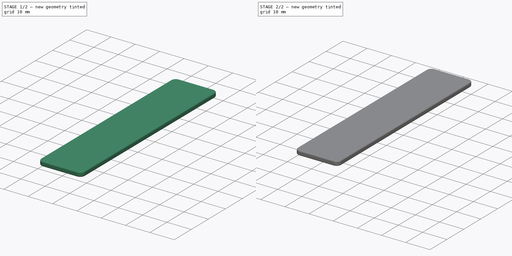
[diagram: build sequence overview — one tinted view per stage of 2, left to right]
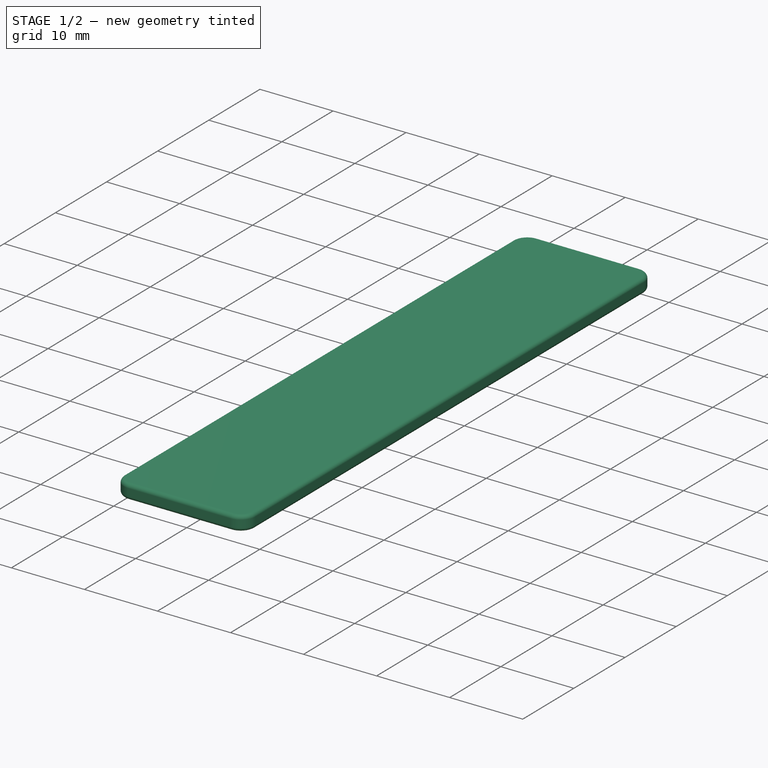
[diagram: stage 1 of 2 — iso view after this stage's code; geometry added in this stage tinted green]
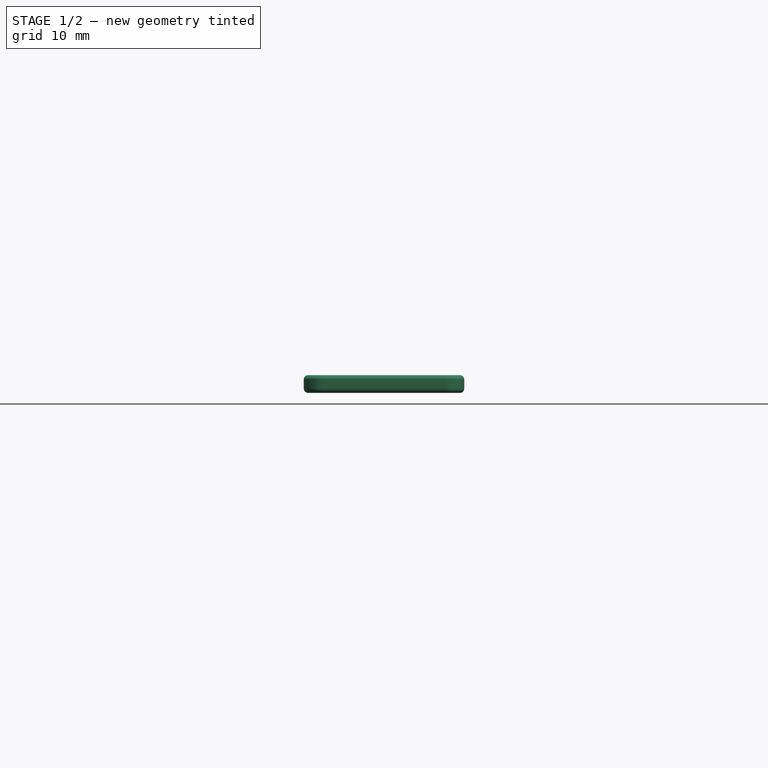
[diagram: stage 1 of 2 — front view after this stage's code; geometry added in this stage tinted green]
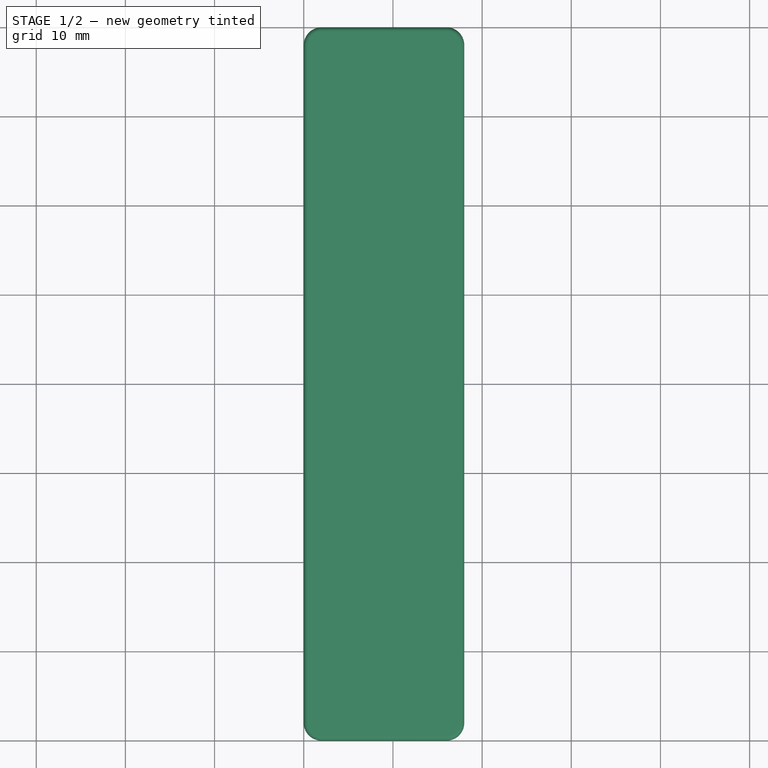
[diagram: stage 1 of 2 — top view after this stage's code; geometry added in this stage tinted green]
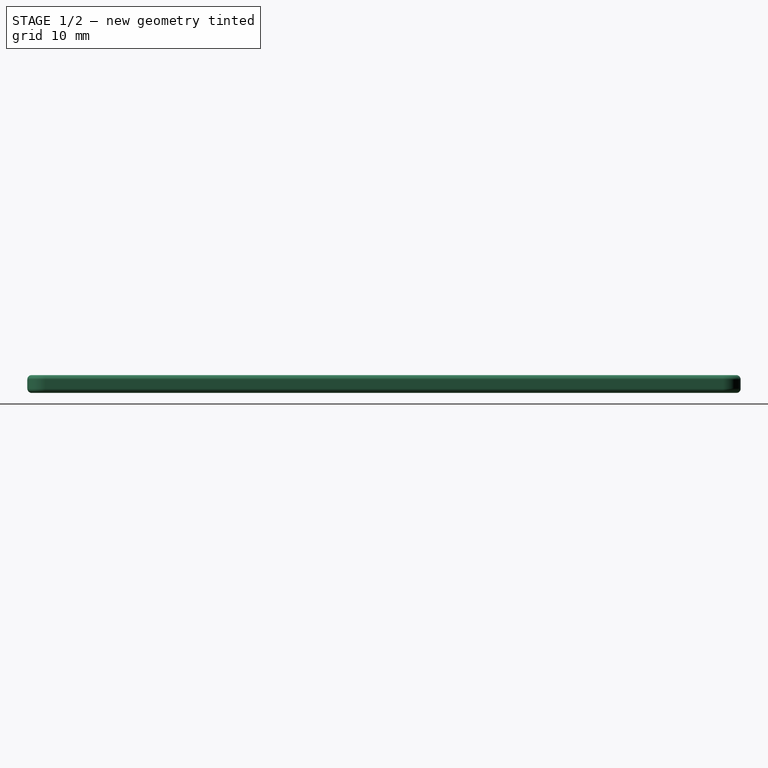
[diagram: stage 1 of 2 — right view after this stage's code; geometry added in this stage tinted green]
FCSTD DOCUMENT  (FreeCAD 0.20R29603 (Git))
Label: keymodel_topC
License: All rights reserved
LicenseURL: http://en.wikipedia.org/wiki/All_rights_reserved
objects: Sketcher::SketchObject×3, PartDesign::Pad×2, PartDesign::Fillet×1, PartDesign::Body×1
note: 10 computed .brp shape members not serialized (recipe doc carries the construction recipe); baked Part::Feature solids carry a one-line shape summary decoded from their .brp

FEATURE [Sketcher::SketchObject] Sketch
  FullyConstrained = true
  MapMode = 5
  Support = -> [XY_Plane]
  sketch-geometry (10):
    g0: ArcOfCircle CenterX=2 CenterY=2 CenterZ=0 NormalX=0 NormalY=0 NormalZ=1 AngleXU=0 Radius=2 StartAngle=3.14159 EndAngle=4.71239
    g1: LineSegment StartX=0 StartY=2 StartZ=0 EndX=0 EndY=78 EndZ=0
    g2: ArcOfCircle CenterX=2 CenterY=78 CenterZ=0 NormalX=0 NormalY=0 NormalZ=1 AngleXU=0 Radius=2 StartAngle=1.5708 EndAngle=3.14159
    g3: LineSegment StartX=2 StartY=80 StartZ=0 EndX=16 EndY=80 EndZ=0
    g4: ArcOfCircle CenterX=16 CenterY=78 CenterZ=0 NormalX=0 NormalY=0 NormalZ=1 AngleXU=0 Radius=2 StartAngle=3.7e-15 EndAngle=1.5708
    g5: LineSegment StartX=18 StartY=78 StartZ=0 EndX=18 EndY=2 EndZ=0
    g6: ArcOfCircle CenterX=16 CenterY=2 CenterZ=0 NormalX=0 NormalY=0 NormalZ=1 AngleXU=0 Radius=2 StartAngle=4.71239 EndAngle=6.28319
    g7: LineSegment StartX=16 StartY=0 StartZ=0 EndX=2 EndY=0 EndZ=0
    g8: GeomPoint X=0 Y=0 Z=0
    g9: GeomPoint X=18 Y=80 Z=0
  constraints (23):
    c: Tangent(g0,g1) = 1.5708
    c: Tangent(g1,g2) = 1.5708
    c: Tangent(g2,g3) = 1.5708
    c: Tangent(g3,g4) = 1.5708
    c: Tangent(g4,g5) = 1.5708
    c: Tangent(g5,g6) = 1.5708
    c: Tangent(g6,g7) = 1.5708
    c: Tangent(g7,g0) = 1.5708
    c: Horizontal(g3)
    c: Horizontal(g7)
    c: Vertical(g1)
    c: Vertical(g5)
    c: Equal(g0,g2)
    c: Equal(g2,g4)
    c: Equal(g4,g6)
    c: PointOnObject(g8,g1)
    c: PointOnObject(g8,g7)
    c: PointOnObject(g9,g3)
    c: PointOnObject(g9,g5)
    c: Coincident(g8,g-1)
    c: Diameter(g0) = 4  'FilletDiameter'
    c: DistanceX(g0,g5) = 18
    c: DistanceY(g6,g3) = 80
FEATURE [PartDesign::Pad] Pad
  Direction = (0,0,1)
  Length = 2
  Length2 = 10
  Profile = -> Sketch
  ReferenceAxis = -> Sketch [N_Axis]
  Type = 0
FEATURE [PartDesign::Fillet] Fillet
  Base = -> Pad [Face4]
  BaseFeature = -> Pad
  Radius = 0.5
  SupportTransform = false
  UseAllEdges = false
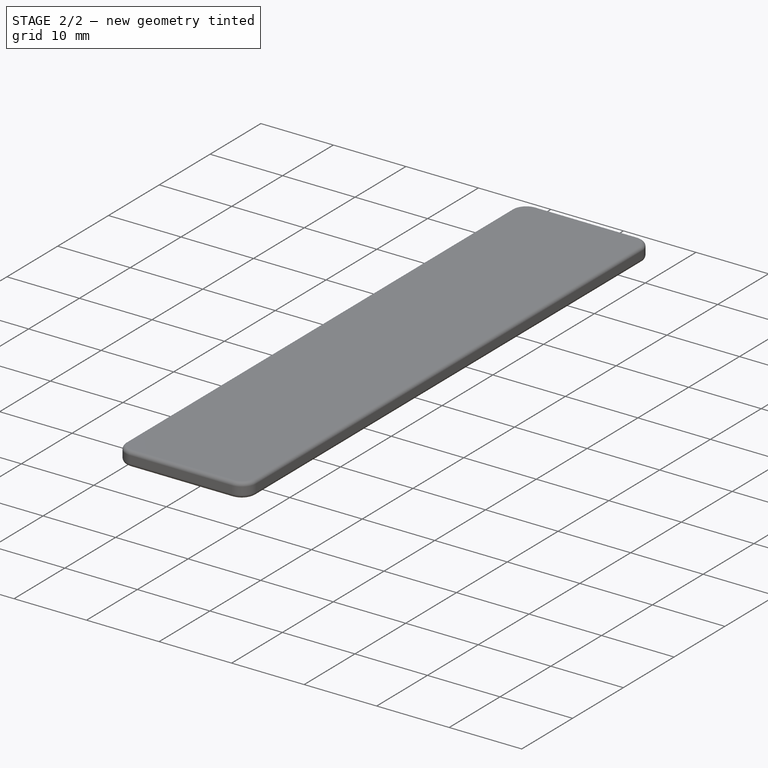
[diagram: stage 2 of 2 — iso view after this stage's code; geometry added in this stage tinted green]
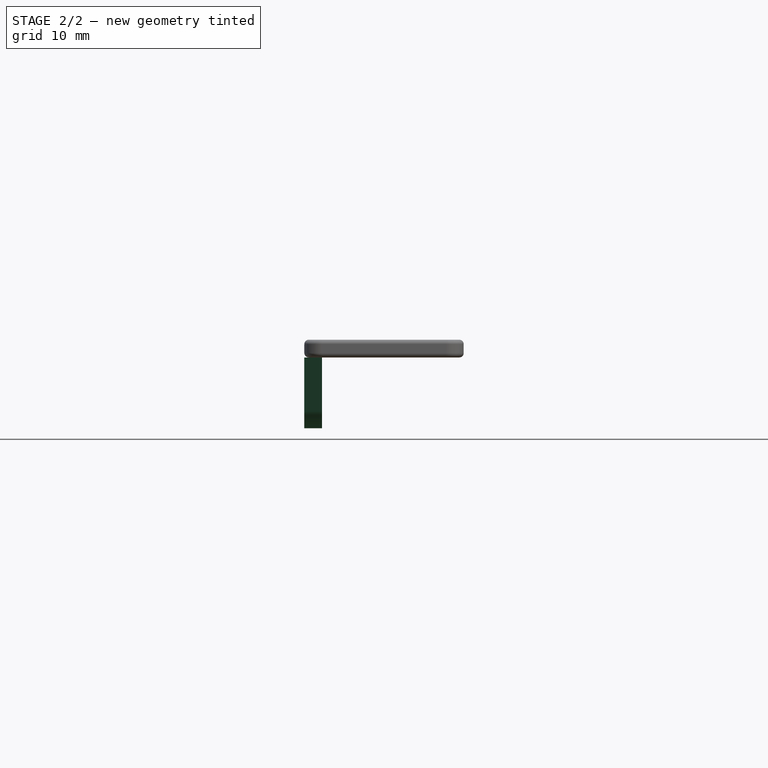
[diagram: stage 2 of 2 — front view after this stage's code; geometry added in this stage tinted green]
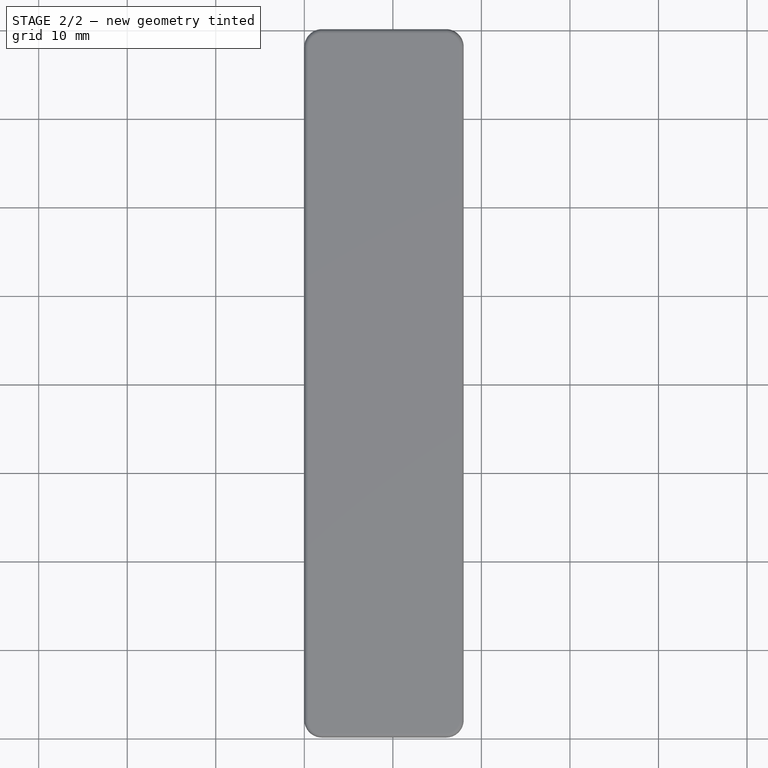
[diagram: stage 2 of 2 — top view after this stage's code; geometry added in this stage tinted green]
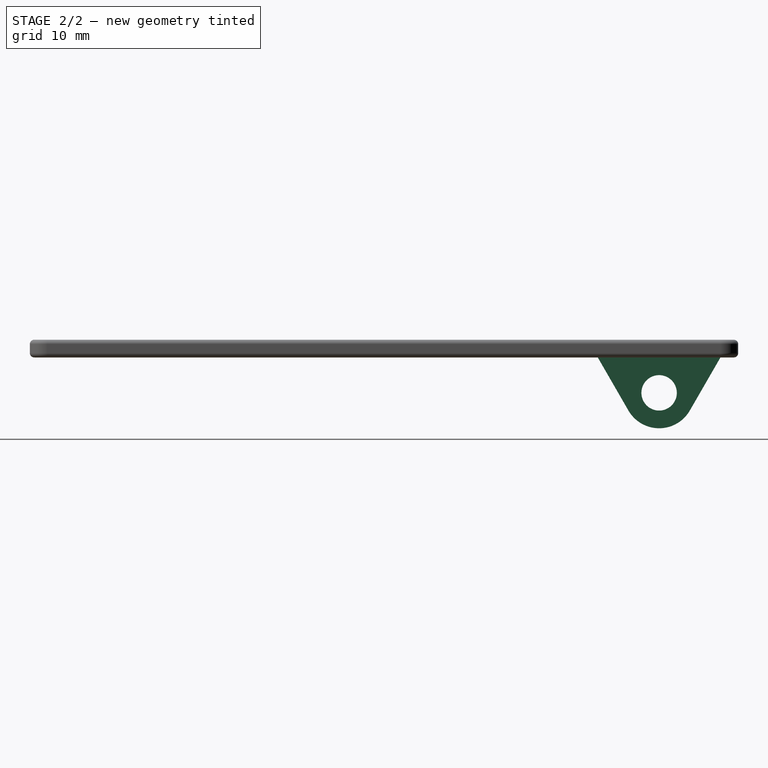
[diagram: stage 2 of 2 — right view after this stage's code; geometry added in this stage tinted green]
FEATURE [Sketcher::SketchObject] Sketch001
  FullyConstrained = false
  MapMode = 5
  Placement = pos=(0,0,0) rot=(0.57735,0.57735,0.57735;2.0944rad)
  Support = -> [YZ_Plane]
  sketch-geometry (6):
    g0: LineSegment StartX=78 StartY=0 StartZ=0 EndX=64.1436 EndY=0 EndZ=0
    g1: LineSegment StartX=64.1436 StartY=0 StartZ=0 EndX=67.6077 EndY=-6 EndZ=0
    g2: LineSegment StartX=74.5359 StartY=-6 StartZ=0 EndX=78 EndY=0 EndZ=0
    g3: Circle CenterX=71.0718 CenterY=-3.9024 CenterZ=0 NormalX=0 NormalY=0 NormalZ=1 AngleXU=0 Radius=7.95165
    g4: Circle CenterX=71.0718 CenterY=-4 CenterZ=0 NormalX=0 NormalY=0 NormalZ=1 AngleXU=0 Radius=2
    g5: ArcOfCircle CenterX=71.0718 CenterY=-4 CenterZ=0 NormalX=0 NormalY=0 NormalZ=1 AngleXU=0 Radius=4 StartAngle=3.66519 EndAngle=5.75959
  constraints (16):
    c: Coincident(g0,g1)
    c: Coincident(g2,g0)
    c: PointOnObject(g0,g3)
    c: PointOnObject(g2,g3)
    c: Tangent(g0,g-1)
    c: Coincident(g5,g4)
    c: Tangent(g5,g2) = -1.5708
    c: Tangent(g5,g1) = -1.5708
    c: Distance(g4,g2) = 4
    c: Diameter(g4) = 4
    c: Distance(g4,g0) = 4
    c: DistanceX(g-1,g0) = 78
    c: Equal(g2,g1)
    c: Coincident(g1,g5)
    c: Coincident(g2,g5)
    c: Angle(g1,g0) = 1.0472
FEATURE [PartDesign::Pad] Pad001
  BaseFeature = -> Fillet
  Direction = (1,-2e-16,3e-16)
  Length = 2
  Length2 = 10
  Profile = -> Sketch001
  ReferenceAxis = -> Sketch001 [N_Axis]
  Type = 0
FEATURE [Sketcher::SketchObject] Sketch002
  FullyConstrained = false
  MapMode = 5
  Placement = pos=(0,0,0) rot=(1,0,0;3.14159rad)
  Support = -> [Pad001]
  sketch-geometry (8):
    g0: LineSegment StartX=15.1896 StartY=-80 StartZ=0 EndX=17.1896 EndY=-80 EndZ=0
    g1: LineSegment StartX=17.1896 StartY=-80 StartZ=0 EndX=17.1896 EndY=-60 EndZ=0
    g2: LineSegment StartX=17.1896 StartY=-60 StartZ=0 EndX=15.1896 EndY=-60 EndZ=0
    g3: LineSegment StartX=15.1896 StartY=-60 StartZ=0 EndX=15.1896 EndY=-80 EndZ=0
    g4: LineSegment StartX=10.1166 StartY=-60 StartZ=0 EndX=10.1166 EndY=-80 EndZ=0
    g5: LineSegment StartX=10.1166 StartY=-60 StartZ=0 EndX=8.1166 EndY=-60 EndZ=0
    g6: LineSegment StartX=8.1166 StartY=-60 StartZ=0 EndX=8.1166 EndY=-80 EndZ=0
    g7: LineSegment StartX=10.1166 StartY=-80 StartZ=0 EndX=8.1166 EndY=-80 EndZ=0
  constraints (22):
    c: Coincident(g0,g1)
    c: Coincident(g1,g2)
    c: Coincident(g2,g3)
    c: Coincident(g3,g0)
    c: Horizontal(g0)
    c: Horizontal(g2)
    c: Vertical(g1)
    c: Vertical(g3)
    c: Distance(g1,g-1) = 60
    c: DistanceY(g-1,g0) = -80
    c: Distance(g0) = 2
    c: Vertical(g4)
    c: Equal(g3,g4)
    c: Coincident(g5,g4)
    c: Horizontal(g5)
    c: Equal(g5,g2)
    c: PointOnObject(g4,g2)
    c: Coincident(g6,g5)
    c: Vertical(g6)
    c: Coincident(g7,g4)
    c: Coincident(g7,g6)
    c: Horizontal(g7)
FEATURE [PartDesign::Body] Body
  Group = -> [Sketch,Pad,Fillet,Sketch001,Pad001,Sketch002]
  Origin = -> Origin
  Tip = -> Pad001
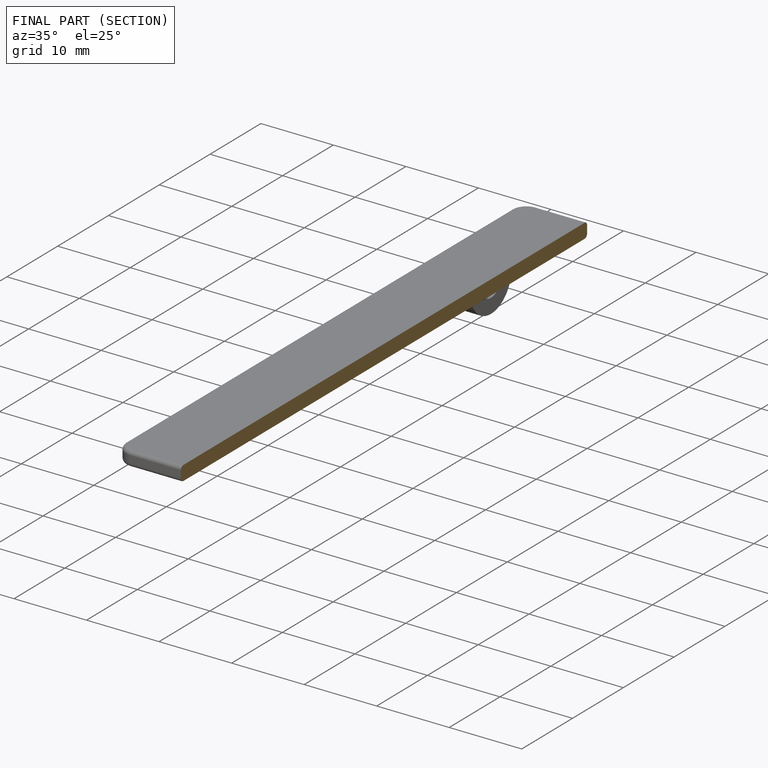
[diagram: finished part — half-section view (interior)]
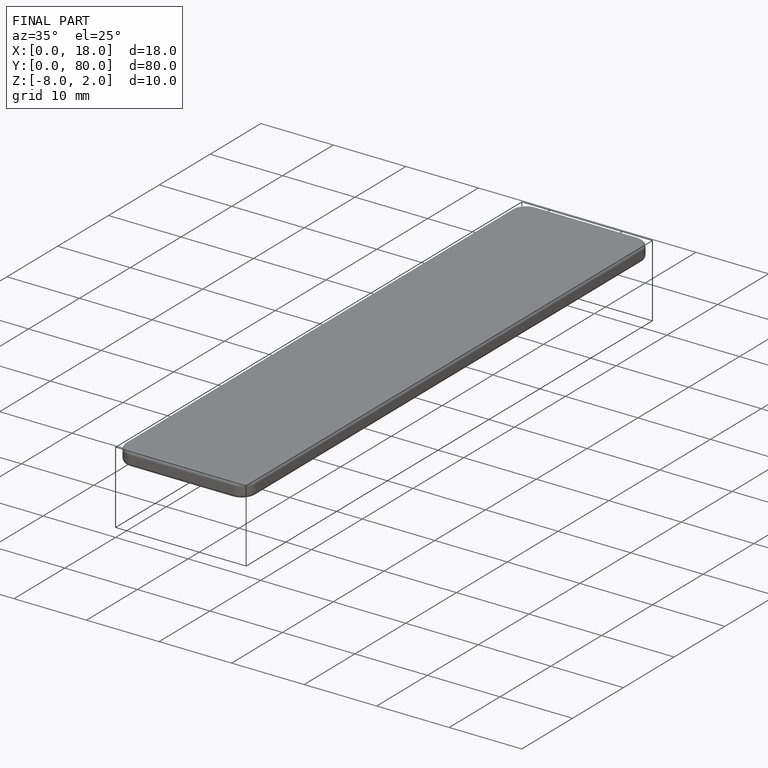
[diagram: finished part — iso view with bounding-box wireframe]
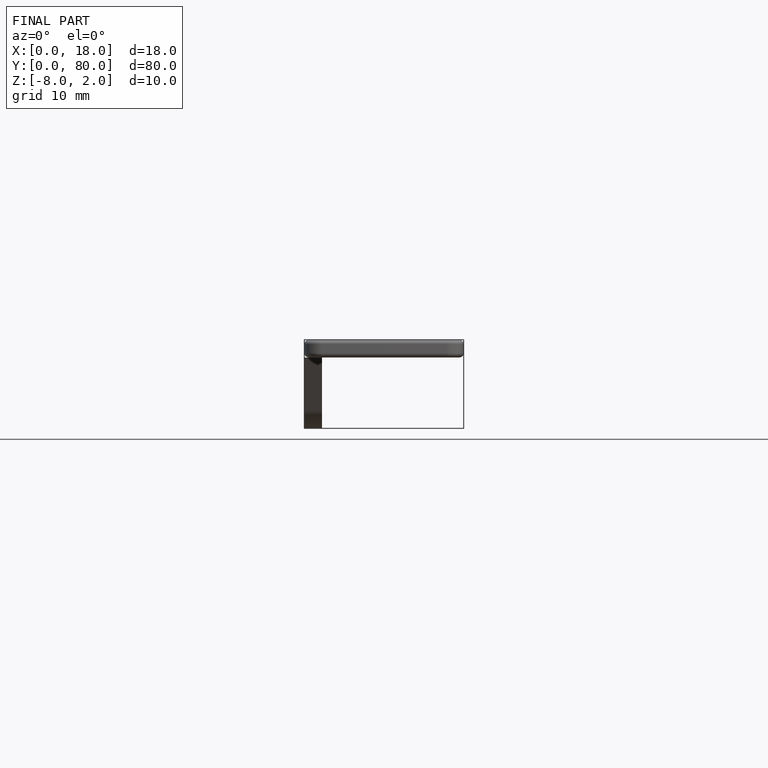
[diagram: finished part — front view with bounding-box wireframe]
